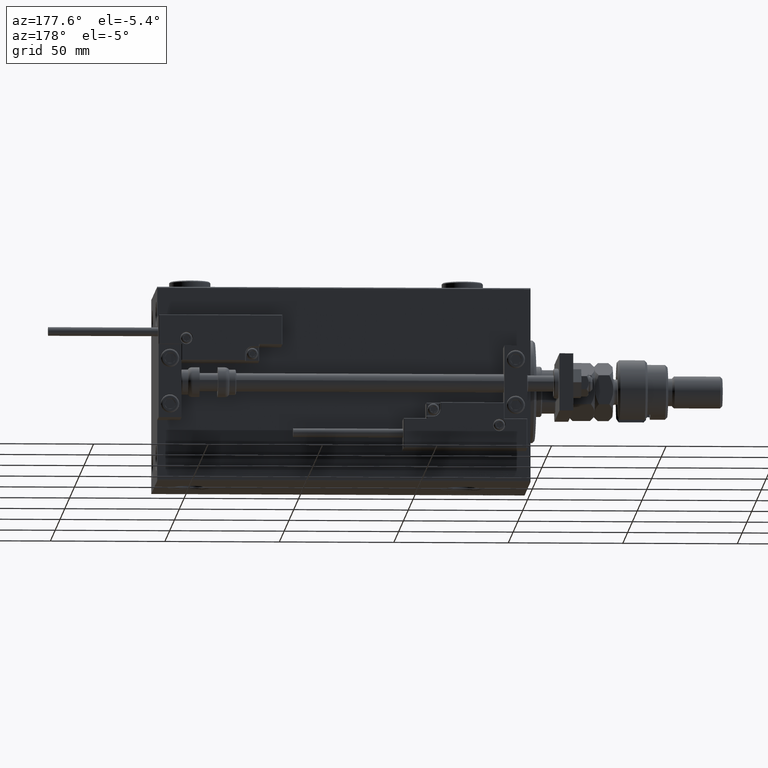
[diagram: clean part render]
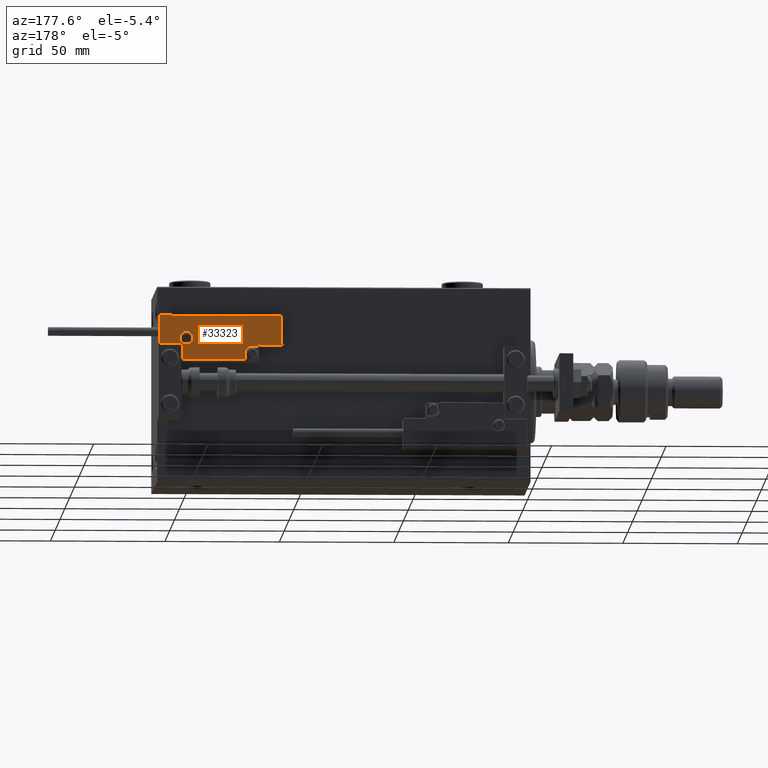
[diagram: same view with one face highlighted and labeled with its STEP entity id]
A machine part, auxiliary view. The second image highlights one B-rep face of the part: STEP entity #33323.
In plain terms, the highlighted planar face has unit normal (-0, 1, -0).
Its self-contained STEP definition (entity closure, byte-faithful):
#230 = DIRECTION ( 'NONE',  ( -8.006416042969869188E-16, -1.000000000000000000, 0.000000000000000000 ) ) ;
#392 = VECTOR ( 'NONE', #44247, 1000.000000000000000 ) ;
#1197 = LINE ( 'NONE', #9598, #51858 ) ;
#1238 = EDGE_CURVE ( 'NONE', #43228, #12192, #15929, .T. ) ;
#1340 = CARTESIAN_POINT ( 'NONE',  ( 0.000000000000000000, 0.000000000000000000, 14.00000000000000000 ) ) ;
#1543 = LINE ( 'NONE', #18636, #44575 ) ;
#1613 = EDGE_CURVE ( 'NONE', #12301, #46789, #2472, .T. ) ;
#1845 = AXIS2_PLACEMENT_3D ( 'NONE', #27399, #44760, #44478 ) ;
#2472 = LINE ( 'NONE', #20384, #31141 ) ;
#2859 = EDGE_CURVE ( 'NONE', #41409, #22533, #1543, .T. ) ;
#2994 = EDGE_CURVE ( 'NONE', #8034, #38945, #26142, .T. ) ;
#3180 = CARTESIAN_POINT ( 'NONE',  ( 10.69999999999999929, 3.000000000000003109, 14.00000000000000000 ) ) ;
#3284 = CARTESIAN_POINT ( 'NONE',  ( -11.99999999999994849, 9.800000000000004263, 14.00000000000000000 ) ) ;
#4023 = EDGE_LOOP ( 'NONE', ( #15750, #6766 ) ) ;
#4419 = DIRECTION ( 'NONE',  ( 1.000000000000000000, -0.000000000000000000, 0.000000000000000000 ) ) ;
#4991 = FACE_OUTER_BOUND ( 'NONE', #31683, .T. ) ;
#5225 = EDGE_CURVE ( 'NONE', #22533, #22775, #46135, .T. ) ;
#6766 = ORIENTED_EDGE ( 'NONE', *, *, #44531, .T. ) ;
#7793 = CARTESIAN_POINT ( 'NONE',  ( 11.00000000000000000, 0.3000000000000032085, 14.00000000000000000 ) ) ;
#8023 = ORIENTED_EDGE ( 'NONE', *, *, #5225, .T. ) ;
#8034 = VERTEX_POINT ( 'NONE', #26485 ) ;
#8103 = CARTESIAN_POINT ( 'NONE',  ( -26.69999999999993534, 19.70000000000002061, 14.00000000000000000 ) ) ;
#8805 = CARTESIAN_POINT ( 'NONE',  ( -16.69999999999999218, 7.300000000000003375, 14.00000000000000000 ) ) ;
#9272 = CARTESIAN_POINT ( 'NONE',  ( 10.69999999999999929, 3.000000000000003109, 14.00000000000000000 ) ) ;
#9598 = CARTESIAN_POINT ( 'NONE',  ( 16.69999999999999929, 7.000000000000009770, 14.00000000000000000 ) ) ;
#9980 = CARTESIAN_POINT ( 'NONE',  ( 10.69999999999999929, 0.3000000000000032085, 14.00000000000000000 ) ) ;
#10147 = VECTOR ( 'NONE', #230, 1000.000000000000000 ) ;
#11413 = CARTESIAN_POINT ( 'NONE',  ( -16.99999999999999289, 7.300000000000003375, 14.00000000000000000 ) ) ;
#11977 = EDGE_CURVE ( 'NONE', #22775, #37724, #13752, .T. ) ;
#12192 = VERTEX_POINT ( 'NONE', #43029 ) ;
#12301 = VERTEX_POINT ( 'NONE', #43673 ) ;
#12485 = EDGE_CURVE ( 'NONE', #38945, #35700, #55404, .T. ) ;
#12597 = ORIENTED_EDGE ( 'NONE', *, *, #11977, .T. ) ;
#13683 = ORIENTED_EDGE ( 'NONE', *, *, #2859, .T. ) ;
#13752 = LINE ( 'NONE', #9272, #15486 ) ;
#14031 = CARTESIAN_POINT ( 'NONE',  ( 26.70000000000006324, 20.00000000000001776, 14.00000000000000000 ) ) ;
#14887 = DIRECTION ( 'NONE',  ( 1.000000000000000000, 0.000000000000000000, 0.000000000000000000 ) ) ;
#15055 = CARTESIAN_POINT ( 'NONE',  ( -16.69999999999999218, 0.3000000000000032085, 14.00000000000000000 ) ) ;
#15486 = VECTOR ( 'NONE', #47880, 1000.000000000000000 ) ;
#15750 = ORIENTED_EDGE ( 'NONE', *, *, #1238, .T. ) ;
#15929 = CIRCLE ( 'NONE', #38263, 2.800000000000000266 ) ;
#16442 = VECTOR ( 'NONE', #46706, 1000.000000000000000 ) ;
#16865 = EDGE_CURVE ( 'NONE', #49702, #32678, #21778, .T. ) ;
#17510 = EDGE_CURVE ( 'NONE', #32678, #8034, #19036, .T. ) ;
#17905 = AXIS2_PLACEMENT_3D ( 'NONE', #1340, #39405, #39128 ) ;
#18382 = ORIENTED_EDGE ( 'NONE', *, *, #1613, .T. ) ;
#18553 = CARTESIAN_POINT ( 'NONE',  ( -14.79999999999994920, 9.800000000000004263, 14.00000000000000000 ) ) ;
#18636 = CARTESIAN_POINT ( 'NONE',  ( -16.69999999999999218, 3.252606517456513302E-15, 14.00000000000000000 ) ) ;
#18693 = PLANE ( 'NONE',  #17905 ) ;
#19036 = LINE ( 'NONE', #14031, #392 ) ;
#20384 = CARTESIAN_POINT ( 'NONE',  ( 17.00000000000000000, 6.300000000000003375, 14.00000000000000000 ) ) ;
#21471 = VECTOR ( 'NONE', #4419, 1000.000000000000000 ) ;
#21778 = LINE ( 'NONE', #30160, #16442 ) ;
#22533 = VERTEX_POINT ( 'NONE', #15055 ) ;
#22775 = VERTEX_POINT ( 'NONE', #9980 ) ;
#22887 = ORIENTED_EDGE ( 'NONE', *, *, #50594, .T. ) ;
#22990 = ORIENTED_EDGE ( 'NONE', *, *, #2994, .T. ) ;
#26087 = DIRECTION ( 'NONE',  ( 9.912705577010318647E-16, 1.000000000000000000, 0.000000000000000000 ) ) ;
#26142 = LINE ( 'NONE', #34545, #49051 ) ;
#26485 = CARTESIAN_POINT ( 'NONE',  ( 26.70000000000006324, 19.70000000000001705, 14.00000000000000000 ) ) ;
#27399 = CARTESIAN_POINT ( 'NONE',  ( 13.99999999999999822, 3.000000000000002665, 14.00000000000000000 ) ) ;
#27615 = ORIENTED_EDGE ( 'NONE', *, *, #12485, .T. ) ;
#28294 = CARTESIAN_POINT ( 'NONE',  ( 26.70000000000006324, 7.300000000000007816, 14.00000000000000000 ) ) ;
#29318 = ORIENTED_EDGE ( 'NONE', *, *, #36681, .T. ) ;
#30160 = CARTESIAN_POINT ( 'NONE',  ( 27.00000000000006395, 7.300000000000007816, 14.00000000000000000 ) ) ;
#31117 = DIRECTION ( 'NONE',  ( 0.000000000000000000, -0.000000000000000000, -1.000000000000000000 ) ) ;
#31141 = VECTOR ( 'NONE', #33256, 1000.000000000000000 ) ;
#31683 = EDGE_LOOP ( 'NONE', ( #13683, #8023, #12597, #22887, #18382, #29318, #40444, #31842, #22990, #27615, #46545 ) ) ;
#31842 = ORIENTED_EDGE ( 'NONE', *, *, #17510, .T. ) ;
#32678 = VERTEX_POINT ( 'NONE', #28294 ) ;
#32870 = CARTESIAN_POINT ( 'NONE',  ( -14.79999999999994920, 9.800000000000004263, 14.00000000000000000 ) ) ;
#33256 = DIRECTION ( 'NONE',  ( 1.000000000000000000, 5.782411586589357639E-16, -0.000000000000000000 ) ) ;
#33323 = ADVANCED_FACE ( 'NONE', ( #34922, #4991 ), #18693, .T. ) ;
#33766 = AXIS2_PLACEMENT_3D ( 'NONE', #32870, #44669, #53637 ) ;
#34545 = CARTESIAN_POINT ( 'NONE',  ( -26.99999999999993605, 19.70000000000002061, 14.00000000000000000 ) ) ;
#34922 = FACE_BOUND ( 'NONE', #4023, .T. ) ;
#35688 = DIRECTION ( 'NONE',  ( 0.000000000000000000, -1.000000000000000000, 0.000000000000000000 ) ) ;
#35700 = VERTEX_POINT ( 'NONE', #45985 ) ;
#36681 = EDGE_CURVE ( 'NONE', #46789, #49702, #1197, .T. ) ;
#37151 = LINE ( 'NONE', #11413, #41335 ) ;
#37724 = VERTEX_POINT ( 'NONE', #3180 ) ;
#38263 = AXIS2_PLACEMENT_3D ( 'NONE', #18553, #31117, #14887 ) ;
#38945 = VERTEX_POINT ( 'NONE', #8103 ) ;
#39128 = DIRECTION ( 'NONE',  ( 1.000000000000000000, 0.000000000000000000, 0.000000000000000000 ) ) ;
#39405 = DIRECTION ( 'NONE',  ( -0.000000000000000000, 0.000000000000000000, 1.000000000000000000 ) ) ;
#40345 = CARTESIAN_POINT ( 'NONE',  ( 16.69999999999999929, 6.300000000000003375, 14.00000000000000000 ) ) ;
#40444 = ORIENTED_EDGE ( 'NONE', *, *, #16865, .T. ) ;
#40847 = CARTESIAN_POINT ( 'NONE',  ( 16.69999999999999929, 7.300000000000009592, 14.00000000000000000 ) ) ;
#40907 = EDGE_CURVE ( 'NONE', #35700, #41409, #37151, .T. ) ;
#41335 = VECTOR ( 'NONE', #41362, 1000.000000000000000 ) ;
#41362 = DIRECTION ( 'NONE',  ( 1.000000000000000000, -1.734723475976815230E-16, 0.000000000000000000 ) ) ;
#41409 = VERTEX_POINT ( 'NONE', #8805 ) ;
#43029 = CARTESIAN_POINT ( 'NONE',  ( -17.59999999999994813, 9.800000000000004263, 14.00000000000000000 ) ) ;
#43228 = VERTEX_POINT ( 'NONE', #3284 ) ;
#43673 = CARTESIAN_POINT ( 'NONE',  ( 13.99999999999999822, 6.300000000000001599, 14.00000000000000000 ) ) ;
#44247 = DIRECTION ( 'NONE',  ( 0.000000000000000000, 1.000000000000000000, -0.000000000000000000 ) ) ;
#44478 = DIRECTION ( 'NONE',  ( 1.000000000000000000, 0.000000000000000000, 0.000000000000000000 ) ) ;
#44486 = CIRCLE ( 'NONE', #33766, 2.800000000000000266 ) ;
#44531 = EDGE_CURVE ( 'NONE', #12192, #43228, #44486, .T. ) ;
#44575 = VECTOR ( 'NONE', #35688, 1000.000000000000000 ) ;
#44669 = DIRECTION ( 'NONE',  ( 0.000000000000000000, -0.000000000000000000, -1.000000000000000000 ) ) ;
#44760 = DIRECTION ( 'NONE',  ( 0.000000000000000000, -0.000000000000000000, -1.000000000000000000 ) ) ;
#45985 = CARTESIAN_POINT ( 'NONE',  ( -26.69999999999994600, 7.300000000000005151, 14.00000000000000000 ) ) ;
#46135 = LINE ( 'NONE', #7793, #21471 ) ;
#46545 = ORIENTED_EDGE ( 'NONE', *, *, #40907, .T. ) ;
#46706 = DIRECTION ( 'NONE',  ( 1.000000000000000000, -1.734723475976796001E-16, 0.000000000000000000 ) ) ;
#46789 = VERTEX_POINT ( 'NONE', #40345 ) ;
#47880 = DIRECTION ( 'NONE',  ( -0.000000000000000000, 1.000000000000000000, -0.000000000000000000 ) ) ;
#49051 = VECTOR ( 'NONE', #51630, 1000.000000000000000 ) ;
#49702 = VERTEX_POINT ( 'NONE', #40847 ) ;
#50594 = EDGE_CURVE ( 'NONE', #37724, #12301, #54612, .T. ) ;
#51193 = CARTESIAN_POINT ( 'NONE',  ( -26.69999999999994600, 7.000000000000005329, 14.00000000000000000 ) ) ;
#51630 = DIRECTION ( 'NONE',  ( -1.000000000000000000, 6.424901762877063495E-17, -0.000000000000000000 ) ) ;
#51858 = VECTOR ( 'NONE', #26087, 1000.000000000000000 ) ;
#53637 = DIRECTION ( 'NONE',  ( 1.000000000000000000, 0.000000000000000000, 0.000000000000000000 ) ) ;
#54612 = CIRCLE ( 'NONE', #1845, 3.299999999999997158 ) ;
#55404 = LINE ( 'NONE', #51193, #10147 ) ;